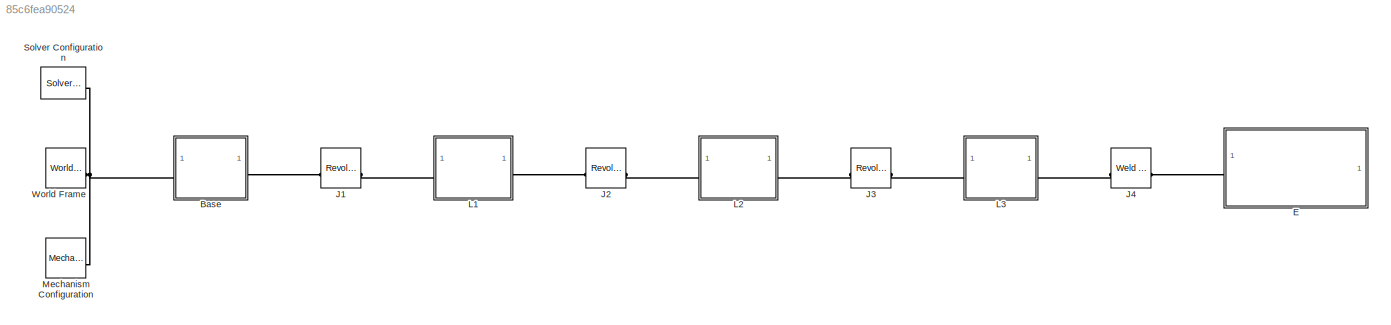
MODEL slx_85c6fea90524
KIND model
CONFIG AbsTol = auto
CONFIG EnableMultiTasking = off
CONFIG FixedStep = auto
CONFIG MaxStep = auto
CONFIG MinStep = auto
CONFIG RelTol = 1e-3
CONFIG SampleTimeConstraint = Unconstrained
CONFIG SolverName = VariableStepAuto
CONFIG StartTime = 0.0
CONFIG StopTime = 1
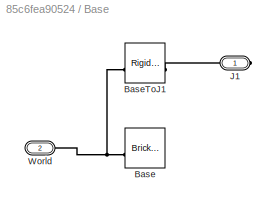
BLOCK [SubSystem] Base
BLOCK [Reference] Base/Base  REF=sm_lib/Body Elements/Brick Solid
  SourceBlock = sm_lib/Body Elements/Brick Solid
  SourceType = Brick Solid
BLOCK [Reference] Base/BaseToJ1  REF=sm_lib/Frames and
Transforms/Rigid
Transform
  SourceBlock = sm_lib/Frames and\nTransforms/Rigid\nTransform
  SourceType = Rigid\nTransform
BLOCK [PMIOPort] Base/J1
  Side = Right
BLOCK [PMIOPort] Base/World
  Port = 2
  Side = Left
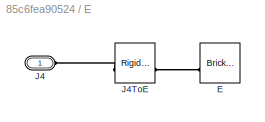
BLOCK [SubSystem] E
BLOCK [Reference] E/E  REF=sm_lib/Body Elements/Brick Solid
  SourceBlock = sm_lib/Body Elements/Brick Solid
  SourceType = Brick Solid
BLOCK [PMIOPort] E/J4
  Side = Left
BLOCK [Reference] E/J4ToE  REF=sm_lib/Frames and
Transforms/Rigid
Transform
  SourceBlock = sm_lib/Frames and\nTransforms/Rigid\nTransform
  SourceType = Rigid\nTransform
BLOCK [Reference] J1  REF=sm_lib/Joints/Revolute Joint
  SourceBlock = sm_lib/Joints/Revolute Joint
  SourceType = Revolute Joint
BLOCK [Reference] J2  REF=sm_lib/Joints/Revolute Joint
  SourceBlock = sm_lib/Joints/Revolute Joint
  SourceType = Revolute Joint
BLOCK [Reference] J3  REF=sm_lib/Joints/Revolute Joint
  SourceBlock = sm_lib/Joints/Revolute Joint
  SourceType = Revolute Joint
BLOCK [Reference] J4  REF=sm_lib/Joints/Weld Joint
  SourceBlock = sm_lib/Joints/Weld Joint
  SourceType = Weld Joint
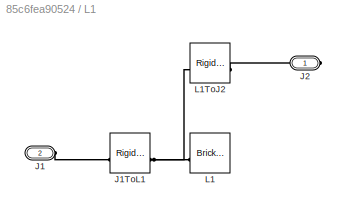
BLOCK [SubSystem] L1
BLOCK [PMIOPort] L1/J1
  Port = 2
  Side = Left
BLOCK [Reference] L1/J1ToL1  REF=sm_lib/Frames and
Transforms/Rigid
Transform
  SourceBlock = sm_lib/Frames and\nTransforms/Rigid\nTransform
  SourceType = Rigid\nTransform
BLOCK [PMIOPort] L1/J2
  Side = Right
BLOCK [Reference] L1/L1  REF=sm_lib/Body Elements/Brick Solid
  SourceBlock = sm_lib/Body Elements/Brick Solid
  SourceType = Brick Solid
BLOCK [Reference] L1/L1ToJ2  REF=sm_lib/Frames and
Transforms/Rigid
Transform
  SourceBlock = sm_lib/Frames and\nTransforms/Rigid\nTransform
  SourceType = Rigid\nTransform
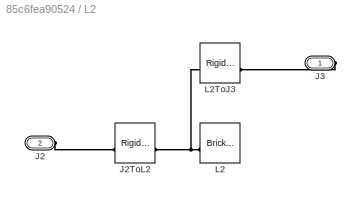
BLOCK [SubSystem] L2
BLOCK [PMIOPort] L2/J2
  Port = 2
  Side = Left
BLOCK [Reference] L2/J2ToL2  REF=sm_lib/Frames and
Transforms/Rigid
Transform
  SourceBlock = sm_lib/Frames and\nTransforms/Rigid\nTransform
  SourceType = Rigid\nTransform
BLOCK [PMIOPort] L2/J3
  Side = Right
BLOCK [Reference] L2/L2  REF=sm_lib/Body Elements/Brick Solid
  SourceBlock = sm_lib/Body Elements/Brick Solid
  SourceType = Brick Solid
BLOCK [Reference] L2/L2ToJ3  REF=sm_lib/Frames and
Transforms/Rigid
Transform
  SourceBlock = sm_lib/Frames and\nTransforms/Rigid\nTransform
  SourceType = Rigid\nTransform
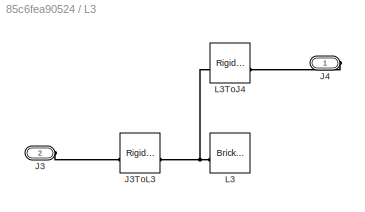
BLOCK [SubSystem] L3
BLOCK [PMIOPort] L3/J3
  Port = 2
  Side = Left
BLOCK [Reference] L3/J3ToL3  REF=sm_lib/Frames and
Transforms/Rigid
Transform
  SourceBlock = sm_lib/Frames and\nTransforms/Rigid\nTransform
  SourceType = Rigid\nTransform
BLOCK [PMIOPort] L3/J4
  Side = Right
BLOCK [Reference] L3/L3  REF=sm_lib/Body Elements/Brick Solid
  SourceBlock = sm_lib/Body Elements/Brick Solid
  SourceType = Brick Solid
BLOCK [Reference] L3/L3ToJ4  REF=sm_lib/Frames and
Transforms/Rigid
Transform
  SourceBlock = sm_lib/Frames and\nTransforms/Rigid\nTransform
  SourceType = Rigid\nTransform
BLOCK [Reference] Mechanism Configuration  REF=sm_lib/Utilities/Mechanism
Configuration
  SourceBlock = sm_lib/Utilities/Mechanism\nConfiguration
  SourceType = Mechanism\nConfiguration
BLOCK [Reference] Solver Configuration  REF=nesl_utility/Solver
Configuration
  SourceBlock = nesl_utility/Solver\nConfiguration
  SourceType = Solver\nConfiguration
BLOCK [Reference] World Frame  REF=sm_lib/Frames and
Transforms/World Frame
  SourceBlock = sm_lib/Frames and\nTransforms/World Frame
  SourceType = World Frame
PNET net1: Base/Base:RConn1 -- Base/BaseToJ1:LConn1 -- Base/World:RConn1
PLINE Base/BaseToJ1:RConn1 -- Base/J1:RConn1
PNET net2: Base:LConn1 -- Mechanism Configuration:RConn1 -- Solver Configuration:RConn1 -- World Frame:RConn1
PLINE Base:RConn1 -- J1:LConn1
PLINE E/E:RConn1 -- E/J4ToE:RConn1
PLINE E/J4:RConn1 -- E/J4ToE:LConn1
PLINE E:LConn1 -- J4:RConn1
PLINE J1:RConn1 -- L1:LConn1
PLINE J2:LConn1 -- L1:RConn1
PLINE J2:RConn1 -- L2:LConn1
PLINE J3:LConn1 -- L2:RConn1
PLINE J3:RConn1 -- L3:LConn1
PLINE J4:LConn1 -- L3:RConn1
PLINE L1/J1:RConn1 -- L1/J1ToL1:LConn1
PNET net3: L1/J1ToL1:RConn1 -- L1/L1:RConn1 -- L1/L1ToJ2:LConn1
PLINE L1/J2:RConn1 -- L1/L1ToJ2:RConn1
PLINE L2/J2:RConn1 -- L2/J2ToL2:LConn1
PNET net4: L2/J2ToL2:RConn1 -- L2/L2:RConn1 -- L2/L2ToJ3:LConn1
PLINE L2/J3:RConn1 -- L2/L2ToJ3:RConn1
PLINE L3/J3:RConn1 -- L3/J3ToL3:LConn1
PNET net5: L3/J3ToL3:RConn1 -- L3/L3:RConn1 -- L3/L3ToJ4:LConn1
PLINE L3/J4:RConn1 -- L3/L3ToJ4:RConn1
note: PNET lines group multi-terminal physical nets as a canonical sorted terminal list (undirected conserving connections); 2-terminal nets keep the pairwise PLINE form
